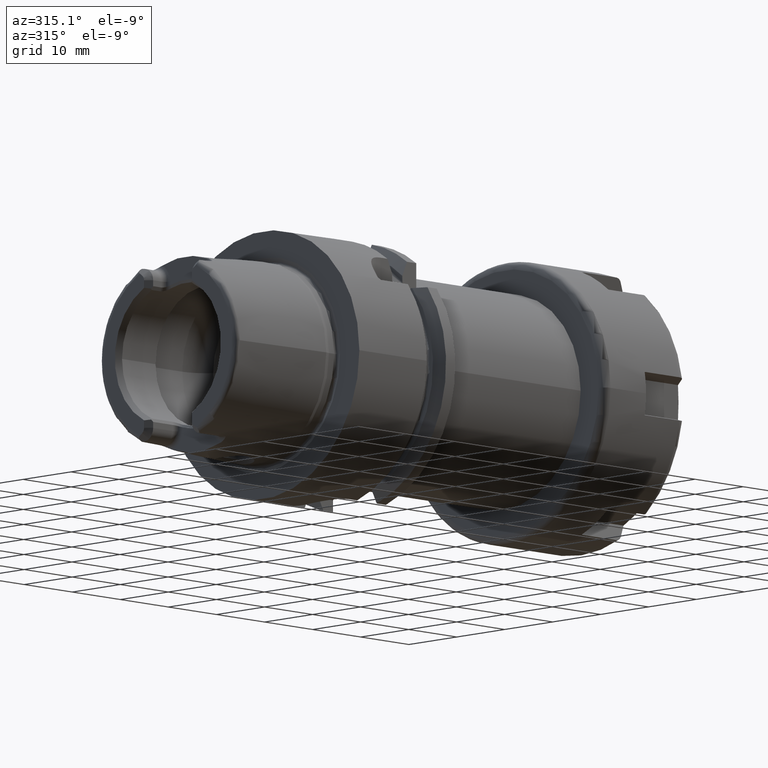
[diagram: clean part render]
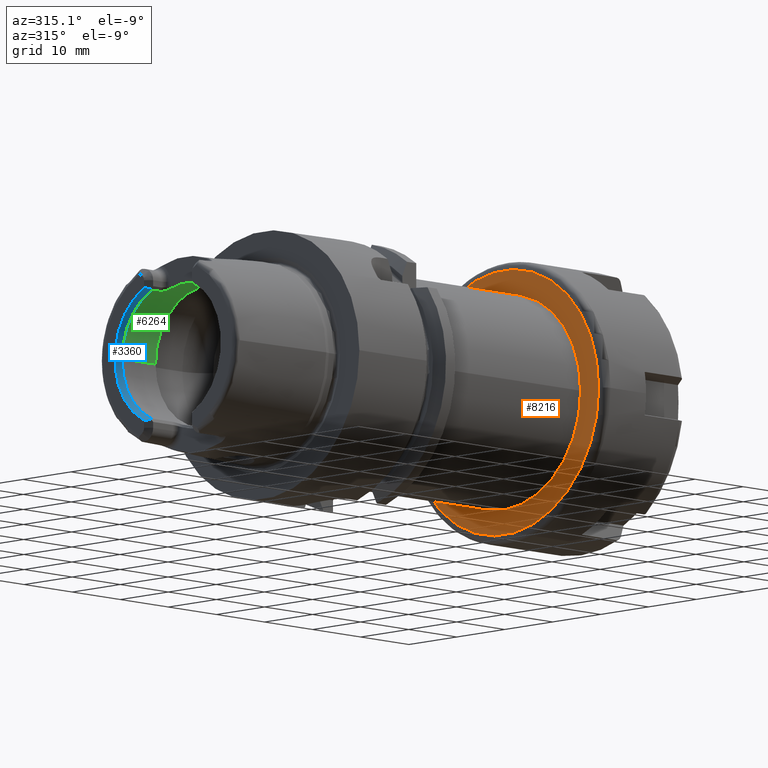
[diagram: same view with three faces highlighted in distinct colors, each labeled with its STEP entity id]
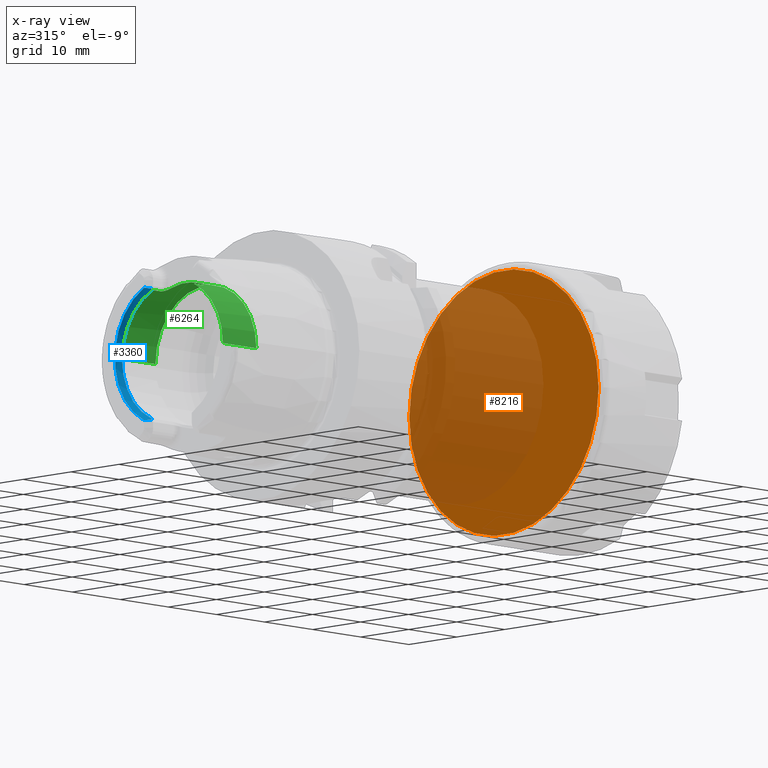
[diagram: x-ray of the same camera — body ghosted, the three highlighted faces saturated]
A machine part, auxiliary view with three faces highlighted in distinct colors.
The next image is the same camera in x-ray (body ghosted, the three faces saturated) — at least one of them is partly hidden behind the body in this view.
Their STEP definitions:

[orange] entity #8216 — the highlighted planar face has unit normal (1, 0, 0).
#7260=CARTESIAN_POINT('',(-2.331468351713E-14,0.E0,0.E0));
#7261=DIRECTION('',(-1.E0,0.E0,0.E0));
#7262=DIRECTION('',(0.E0,1.E0,0.E0));
#7263=AXIS2_PLACEMENT_3D('',#7260,#7261,#7262);
#7265=CARTESIAN_POINT('',(-2.420286193683E-14,0.E0,0.E0));
#7266=DIRECTION('',(-1.E0,0.E0,0.E0));
#7267=DIRECTION('',(0.E0,-1.E0,0.E0));
#7268=AXIS2_PLACEMENT_3D('',#7265,#7266,#7267);
#7464=CARTESIAN_POINT('',(0.E0,1.975E1,0.E0));
#7465=CARTESIAN_POINT('',(-4.569356216284E-14,-1.975E1,0.E0));
#7466=VERTEX_POINT('',#7464);
#7467=VERTEX_POINT('',#7465);
#8206=CARTESIAN_POINT('',(-2.375877272698E-14,0.E0,0.E0));
#8207=DIRECTION('',(1.E0,0.E0,0.E0));
#8208=DIRECTION('',(0.E0,-1.E0,0.E0));
#8209=AXIS2_PLACEMENT_3D('',#8206,#8207,#8208);
#8210=PLANE('',#8209);
#8212=ORIENTED_EDGE('',*,*,#8211,.F.);
#8213=ORIENTED_EDGE('',*,*,#8196,.F.);
#8214=EDGE_LOOP('',(#8212,#8213));
#8215=FACE_OUTER_BOUND('',#8214,.F.);
#8216=ADVANCED_FACE('',(#8215),#8210,.F.);
#7264=CIRCLE('',#7263,1.975E1);
#7269=CIRCLE('',#7268,1.975E1);
#8196=EDGE_CURVE('',#7467,#7466,#7269,.T.);
#8211=EDGE_CURVE('',#7466,#7467,#7264,.T.);

[blue] entity #3360 — the highlighted conical surface has half-angle 30 deg.
#136=CARTESIAN_POINT('',(-1.915668162738E1,4.231681627377E0,-9.762655582538E0));
#137=CARTESIAN_POINT('',(-1.940390782661E1,4.478907826611E0,-9.811062129655E0));
#138=CARTESIAN_POINT('',(-1.965168519852E1,4.726685198523E0,-9.852962789534E0));
#139=CARTESIAN_POINT('',(-1.99E1,4.975E0,-9.888519782020E0));
#141=CARTESIAN_POINT('',(-1.99E1,0.E0,0.E0));
#142=DIRECTION('',(1.E0,0.E0,0.E0));
#143=DIRECTION('',(0.E0,4.494338271971E-1,-8.933136263211E-1));
#144=AXIS2_PLACEMENT_3D('',#141,#142,#143);
#146=CARTESIAN_POINT('',(-1.99E1,4.975E0,9.888519782020E0));
#147=CARTESIAN_POINT('',(-1.965168519852E1,4.726685198523E0,9.852962789534E0));
#148=CARTESIAN_POINT('',(-1.940390782661E1,4.478907826611E0,9.811062129655E0));
#149=CARTESIAN_POINT('',(-1.915668162738E1,4.231681627377E0,9.762655582538E0));
#151=CARTESIAN_POINT('',(-1.895E1,4.332886713606E0,9.587363231205E0));
#152=CARTESIAN_POINT('',(-1.898387717388E1,4.316119693210E0,9.616404562423E0));
#153=CARTESIAN_POINT('',(-1.905220115731E1,4.282485093895E0,9.674661397329E0));
#154=CARTESIAN_POINT('',(-1.912166481215E1,4.248649577931E0,9.733266230077E0));
#155=CARTESIAN_POINT('',(-1.915668162738E1,4.231681627377E0,9.762655582538E0));
#157=CARTESIAN_POINT('',(-1.895E1,0.E0,0.E0));
#158=DIRECTION('',(1.E0,0.E0,0.E0));
#159=DIRECTION('',(0.E0,1.E0,0.E0));
#160=AXIS2_PLACEMENT_3D('',#157,#158,#159);
#162=CARTESIAN_POINT('',(-1.895E1,0.E0,0.E0));
#163=DIRECTION('',(-1.E0,0.E0,0.E0));
#164=DIRECTION('',(0.E0,1.E0,0.E0));
#165=AXIS2_PLACEMENT_3D('',#162,#163,#164);
#167=CARTESIAN_POINT('',(-1.915668162738E1,4.231681627377E0,-9.762655582538E0));
#168=CARTESIAN_POINT('',(-1.912166610141E1,4.248648953200E0,-9.733267312144E0));
#169=CARTESIAN_POINT('',(-1.905220372286E1,4.282483837702E0,-9.674663573119E0));
#170=CARTESIAN_POINT('',(-1.898387844984E1,4.316119061690E0,-9.616405656246E0));
#171=CARTESIAN_POINT('',(-1.895E1,4.332886713606E0,-9.587363231205E0));
#2810=CARTESIAN_POINT('',(-1.99E1,4.975E0,9.888519782020E0));
#2812=VERTEX_POINT('',#2810);
#2826=CARTESIAN_POINT('',(-1.915668162738E1,4.231681627377E0,9.762655582538E0));
#2827=VERTEX_POINT('',#2826);
#2843=CARTESIAN_POINT('',(-1.99E1,4.975E0,-9.888519782020E0));
#2845=VERTEX_POINT('',#2843);
#2858=CARTESIAN_POINT('',(-1.915668162738E1,4.231681627377E0,
-9.762655582538E0));
#2859=VERTEX_POINT('',#2858);
#3087=CARTESIAN_POINT('',(-1.895E1,1.0521E1,0.E0));
#3088=VERTEX_POINT('',#3087);
#3101=CARTESIAN_POINT('',(-1.895E1,4.332886713606E0,9.587363231205E0));
#3102=VERTEX_POINT('',#3101);
#3107=CARTESIAN_POINT('',(-1.895E1,4.332886713606E0,-9.587363231205E0));
#3108=VERTEX_POINT('',#3107);
#3341=CARTESIAN_POINT('',(-1.9425E1,0.E0,0.E0));
#3342=DIRECTION('',(-1.E0,0.E0,0.E0));
#3343=DIRECTION('',(0.E0,1.E0,0.E0));
#3344=AXIS2_PLACEMENT_3D('',#3341,#3342,#3343);
#3345=CONICAL_SURFACE('',#3344,1.079524137787E1,3.E1);
#3346=ORIENTED_EDGE('',*,*,#3330,.T.);
#3347=ORIENTED_EDGE('',*,*,#3296,.T.);
#3349=ORIENTED_EDGE('',*,*,#3348,.T.);
#3351=ORIENTED_EDGE('',*,*,#3350,.F.);
#3353=ORIENTED_EDGE('',*,*,#3352,.F.);
#3355=ORIENTED_EDGE('',*,*,#3354,.T.);
#3357=ORIENTED_EDGE('',*,*,#3356,.F.);
#3358=EDGE_LOOP('',(#3346,#3347,#3349,#3351,#3353,#3355,#3357));
#3359=FACE_OUTER_BOUND('',#3358,.F.);
#3360=ADVANCED_FACE('',(#3359),#3345,.F.);
#140=B_SPLINE_CURVE_WITH_KNOTS('',3,(#136,#137,#138,#139),.UNSPECIFIED.,.F.,.F.,
(4,4),(0.E0,1.E0),.UNSPECIFIED.);
#145=CIRCLE('',#144,1.106948275573E1);
#150=B_SPLINE_CURVE_WITH_KNOTS('',3,(#146,#147,#148,#149),.UNSPECIFIED.,.F.,.F.,
(4,4),(0.E0,1.E0),.UNSPECIFIED.);
#156=B_SPLINE_CURVE_WITH_KNOTS('',3,(#151,#152,#153,#154,#155),.UNSPECIFIED.,
.F.,.F.,(4,1,4),(0.E0,5.E-1,1.E0),.UNSPECIFIED.);
#161=CIRCLE('',#160,1.0521E1);
#166=CIRCLE('',#165,1.0521E1);
#172=B_SPLINE_CURVE_WITH_KNOTS('',3,(#167,#168,#169,#170,#171),.UNSPECIFIED.,
.F.,.F.,(4,1,4),(0.E0,5.E-1,1.E0),.UNSPECIFIED.);
#3296=EDGE_CURVE('',#2845,#2812,#145,.T.);
#3330=EDGE_CURVE('',#2859,#2845,#140,.T.);
#3348=EDGE_CURVE('',#2812,#2827,#150,.T.);
#3350=EDGE_CURVE('',#3102,#2827,#156,.T.);
#3352=EDGE_CURVE('',#3088,#3102,#161,.T.);
#3354=EDGE_CURVE('',#3088,#3108,#166,.T.);
#3356=EDGE_CURVE('',#2859,#3108,#172,.T.);

[green] entity #6264 — the highlighted cylindrical surface (partial cylindrical patch) has radius 10.521 mm, axis along (1, 0, 0).
#157=CARTESIAN_POINT('',(-1.895E1,0.E0,0.E0));
#158=DIRECTION('',(1.E0,0.E0,0.E0));
#159=DIRECTION('',(0.E0,1.E0,0.E0));
#160=AXIS2_PLACEMENT_3D('',#157,#158,#159);
#189=CARTESIAN_POINT('',(-1.895E1,0.E0,0.E0));
#190=DIRECTION('',(1.E0,0.E0,0.E0));
#191=DIRECTION('',(0.E0,-4.118322130602E-1,9.112596931095E-1));
#192=AXIS2_PLACEMENT_3D('',#189,#190,#191);
#490=DIRECTION('',(-1.E0,0.E0,0.E0));
#491=VECTOR('',#490,6.964774086463E0);
#492=CARTESIAN_POINT('',(-1.198522591354E1,1.0521E1,0.E0));
#493=LINE('',#492,#491);
#499=DIRECTION('',(-1.E0,0.E0,0.E0));
#500=VECTOR('',#499,6.964774086463E0);
#501=CARTESIAN_POINT('',(-1.198522591354E1,-1.0521E1,0.E0));
#502=LINE('',#501,#500);
#2507=DIRECTION('',(1.E0,0.E0,0.E0));
#2508=VECTOR('',#2507,1.75E0);
#2509=CARTESIAN_POINT('',(-1.895E1,4.332886713606E0,9.587363231205E0));
#2510=LINE('',#2509,#2508);
#2511=CARTESIAN_POINT('',(-1.606905989232E1,3.125E0,1.004618415121E1));
#2512=CARTESIAN_POINT('',(-1.606592975632E1,3.211047903171E0,1.001941779959E1));
#2513=CARTESIAN_POINT('',(-1.607830690364E1,3.376674935651E0,9.965489777489E0));
#2514=CARTESIAN_POINT('',(-1.614487701062E1,3.608387354782E0,9.883797452958E0));
#2515=CARTESIAN_POINT('',(-1.625248013602E1,3.815484612350E0,9.805480189144E0));
#2516=CARTESIAN_POINT('',(-1.639066255617E1,3.989788124029E0,9.735653861391E0));
#2517=CARTESIAN_POINT('',(-1.656012006947E1,4.135710131119E0,9.674392936752E0));
#2518=CARTESIAN_POINT('',(-1.675410390616E1,4.245967146710E0,9.626339205827E0));
#2519=CARTESIAN_POINT('',(-1.697166896900E1,4.316666764180E0,9.594719443667E0));
#2520=CARTESIAN_POINT('',(-1.712238435692E1,4.332886713606E0,9.587363231205E0));
#2521=CARTESIAN_POINT('',(-1.72E1,4.332886713606E0,9.587363231205E0));
#2523=CARTESIAN_POINT('',(-1.606905989232E1,-3.125E0,1.004618415121E1));
#2524=CARTESIAN_POINT('',(-1.606905989232E1,-2.721042228970E0,
1.017184062092E1));
#2525=CARTESIAN_POINT('',(-1.606905989235E1,-1.897951985783E0,
1.037436441745E1));
#2526=CARTESIAN_POINT('',(-1.606905989234E1,-6.357304159774E-1,
1.052736939476E1));
#2527=CARTESIAN_POINT('',(-1.606905989234E1,6.357304159773E-1,
1.052736939476E1));
#2528=CARTESIAN_POINT('',(-1.606905989235E1,1.897951985784E0,1.037436441746E1));
#2529=CARTESIAN_POINT('',(-1.606905989232E1,2.721042228969E0,1.017184062091E1));
#2530=CARTESIAN_POINT('',(-1.606905989232E1,3.125E0,1.004618415121E1));
#2532=CARTESIAN_POINT('',(-1.72E1,-4.332886713606E0,9.587363231205E0));
#2533=CARTESIAN_POINT('',(-1.712285006857E1,-4.332886713606E0,
9.587363231205E0));
#2534=CARTESIAN_POINT('',(-1.697307041867E1,-4.316718593708E0,
9.594693336977E0));
#2535=CARTESIAN_POINT('',(-1.675926406065E1,-4.248069617224E0,
9.625405215616E0));
#2536=CARTESIAN_POINT('',(-1.656435139104E1,-4.138751657454E0,
9.673089130358E0));
#2537=CARTESIAN_POINT('',(-1.639441708920E1,-3.993617830692E0,
9.734075777498E0));
#2538=CARTESIAN_POINT('',(-1.625572565004E1,-3.820495104545E0,
9.803525976759E0));
#2539=CARTESIAN_POINT('',(-1.614643644861E1,-3.612675047199E0,
9.882244600219E0));
#2540=CARTESIAN_POINT('',(-1.607856837010E1,-3.378987943032E0,
9.964725252688E0));
#2541=CARTESIAN_POINT('',(-1.606589935315E1,-3.211883690699E0,
1.001915781670E1));
#2542=CARTESIAN_POINT('',(-1.606905989232E1,-3.125E0,1.004618415121E1));
#2544=DIRECTION('',(1.E0,0.E0,0.E0));
#2545=VECTOR('',#2544,1.75E0);
#2546=CARTESIAN_POINT('',(-1.895E1,-4.332886713606E0,9.587363231205E0));
#2547=LINE('',#2546,#2545);
#2548=CARTESIAN_POINT('',(-1.198522591354E1,0.E0,0.E0));
#2549=DIRECTION('',(1.E0,0.E0,0.E0));
#2550=DIRECTION('',(0.E0,1.E0,0.E0));
#2551=AXIS2_PLACEMENT_3D('',#2548,#2549,#2550);
#2790=CARTESIAN_POINT('',(-1.72E1,4.332886713606E0,9.587363231205E0));
#2791=VERTEX_POINT('',#2790);
#2792=CARTESIAN_POINT('',(-1.606905989232E1,3.125E0,1.004618415121E1));
#2793=VERTEX_POINT('',#2792);
#2794=CARTESIAN_POINT('',(-1.72E1,-4.332886713606E0,9.587363231205E0));
#2795=VERTEX_POINT('',#2794);
#2796=CARTESIAN_POINT('',(-1.606905989232E1,-3.125E0,1.004618415121E1));
#2797=VERTEX_POINT('',#2796);
#3085=CARTESIAN_POINT('',(-1.198522591354E1,1.0521E1,0.E0));
#3086=VERTEX_POINT('',#3085);
#3087=CARTESIAN_POINT('',(-1.895E1,1.0521E1,0.E0));
#3088=VERTEX_POINT('',#3087);
#3097=CARTESIAN_POINT('',(-1.198522591354E1,-1.0521E1,0.E0));
#3098=VERTEX_POINT('',#3097);
#3099=CARTESIAN_POINT('',(-1.895E1,-1.0521E1,0.E0));
#3100=VERTEX_POINT('',#3099);
#3101=CARTESIAN_POINT('',(-1.895E1,4.332886713606E0,9.587363231205E0));
#3102=VERTEX_POINT('',#3101);
#3103=CARTESIAN_POINT('',(-1.895E1,-4.332886713606E0,9.587363231205E0));
#3104=VERTEX_POINT('',#3103);
#6243=CARTESIAN_POINT('',(-2.12925E1,0.E0,0.E0));
#6244=DIRECTION('',(1.E0,0.E0,0.E0));
#6245=DIRECTION('',(0.E0,-1.E0,0.E0));
#6246=AXIS2_PLACEMENT_3D('',#6243,#6244,#6245);
#6247=CYLINDRICAL_SURFACE('',#6246,1.0521E1);
#6248=ORIENTED_EDGE('',*,*,#3407,.T.);
#6250=ORIENTED_EDGE('',*,*,#6249,.F.);
#6252=ORIENTED_EDGE('',*,*,#6251,.F.);
#6254=ORIENTED_EDGE('',*,*,#6253,.F.);
#6256=ORIENTED_EDGE('',*,*,#6255,.F.);
#6257=ORIENTED_EDGE('',*,*,#3372,.T.);
#6258=ORIENTED_EDGE('',*,*,#3633,.F.);
#6259=ORIENTED_EDGE('',*,*,#6223,.F.);
#6260=ORIENTED_EDGE('',*,*,#3629,.T.);
#6261=ORIENTED_EDGE('',*,*,#3352,.T.);
#6262=EDGE_LOOP('',(#6248,#6250,#6252,#6254,#6256,#6257,#6258,#6259,#6260,
#6261));
#6263=FACE_OUTER_BOUND('',#6262,.F.);
#6264=ADVANCED_FACE('',(#6263),#6247,.F.);
#161=CIRCLE('',#160,1.0521E1);
#193=CIRCLE('',#192,1.0521E1);
#2522=B_SPLINE_CURVE_WITH_KNOTS('',3,(#2511,#2512,#2513,#2514,#2515,#2516,#2517,
#2518,#2519,#2520,#2521),.UNSPECIFIED.,.F.,.F.,(4,1,1,1,1,1,1,1,4),(0.E0,
1.25E-1,2.5E-1,3.75E-1,5.E-1,6.25E-1,7.5E-1,8.75E-1,1.E0),.UNSPECIFIED.);
#2531=B_SPLINE_CURVE_WITH_KNOTS('',3,(#2523,#2524,#2525,#2526,#2527,#2528,#2529,
#2530),.UNSPECIFIED.,.F.,.F.,(4,1,1,1,1,4),(0.E0,2.E-1,4.E-1,6.E-1,8.E-1,1.E0),
.UNSPECIFIED.);
#2543=B_SPLINE_CURVE_WITH_KNOTS('',3,(#2532,#2533,#2534,#2535,#2536,#2537,#2538,
#2539,#2540,#2541,#2542),.UNSPECIFIED.,.F.,.F.,(4,1,1,1,1,1,1,1,4),(0.E0,
1.25E-1,2.5E-1,3.75E-1,5.E-1,6.25E-1,7.5E-1,8.75E-1,1.E0),.UNSPECIFIED.);
#2552=CIRCLE('',#2551,1.0521E1);
#3352=EDGE_CURVE('',#3088,#3102,#161,.T.);
#3372=EDGE_CURVE('',#3104,#3100,#193,.T.);
#3407=EDGE_CURVE('',#3102,#2791,#2510,.T.);
#3629=EDGE_CURVE('',#3086,#3088,#493,.T.);
#3633=EDGE_CURVE('',#3098,#3100,#502,.T.);
#6223=EDGE_CURVE('',#3086,#3098,#2552,.T.);
#6249=EDGE_CURVE('',#2793,#2791,#2522,.T.);
#6251=EDGE_CURVE('',#2797,#2793,#2531,.T.);
#6253=EDGE_CURVE('',#2795,#2797,#2543,.T.);
#6255=EDGE_CURVE('',#3104,#2795,#2547,.T.);